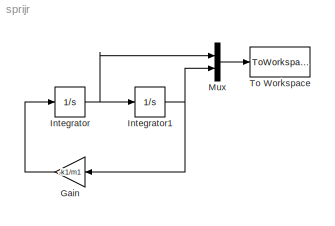
MODEL sprijr
KIND model
BLOCK [Gain] Gain
  Gain = -k1/m1
  Multiplication = Matrix(K*u)
  OutDataTypeStr = Inherit: Inherit via internal rule
  ParamDataTypeStr = Inherit: Inherit via internal rule
  SID = 3
  SaturateOnIntegerOverflow = off
BLOCK [Integrator] Integrator
  InitialCondition = v0
  Ports = [1, 1]
  SID = 1
BLOCK [Integrator] Integrator1
  Ports = [1, 1]
  SID = 2
BLOCK [Mux] Mux
  DisplayOption = bar
  Inputs = 2
  Ports = [2, 1]
  SID = 5
BLOCK [ToWorkspace] To Workspace
  MaxDataPoints = inf
  Ports = [1]
  SID = 6
  SampleTime = -1
  SaveFormat = Timeseries
  VariableName = wpr_spr
LINE Gain:1 -> Integrator:1
NET Integrator1:1 -> Gain:1, Mux:2
NET Integrator:1 -> Integrator1:1, Mux:1
LINE Mux:1 -> To Workspace:1
note: NET lines group one-source signal fan-out (src -> all destinations, sorted); 1:1 wires keep LINE
